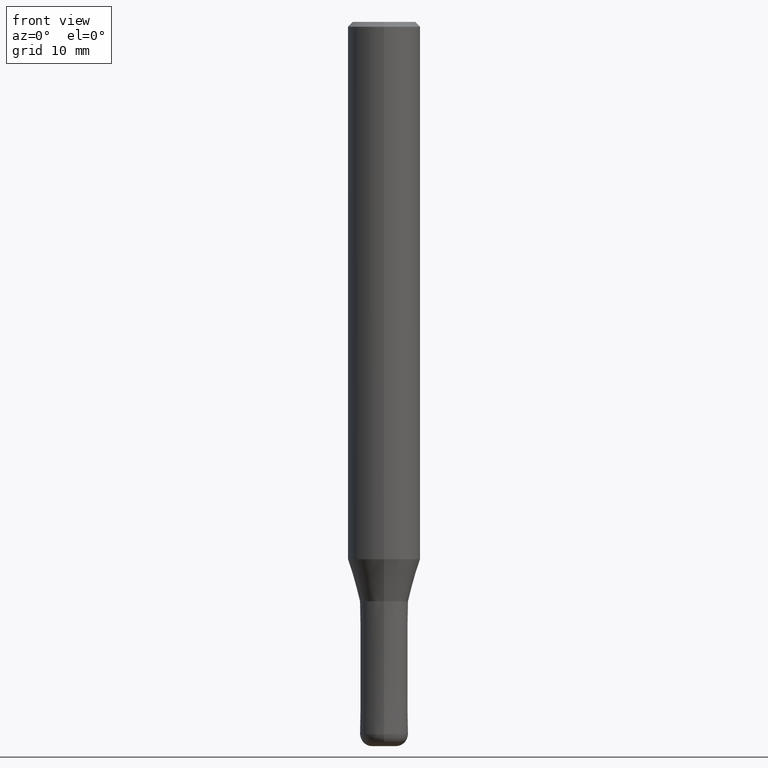
[diagram: clean part render]
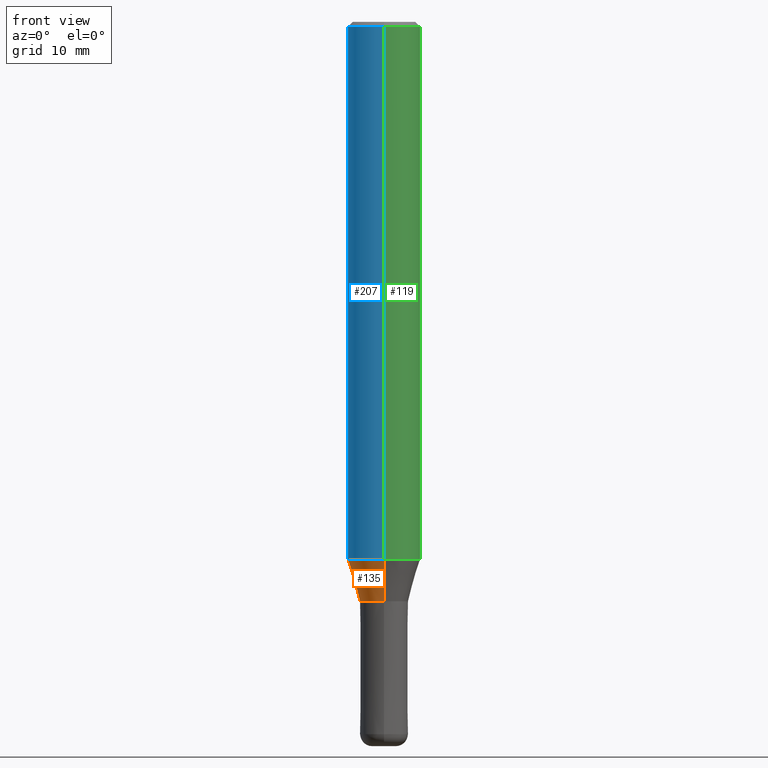
[diagram: same view with three faces highlighted in distinct colors, each labeled with its STEP entity id]
A machine part, front view with three faces highlighted in distinct colors.
Their STEP definitions:

[orange] entity #135 — the highlighted conical surface has half-angle 16.002 deg.
#129=VERTEX_POINT('',#317);
#131=VERTEX_POINT('',#319);
#135=ADVANCED_FACE('',(#323),#324,.T.);
#139=EDGE_CURVE('',#131,#129,#328,.T.);
#145=EDGE_CURVE('',#129,#199,#334,.T.);
#161=VERTEX_POINT('',#354);
#199=VERTEX_POINT('',#396);
#225=EDGE_CURVE('',#199,#161,#431,.T.);
#261=EDGE_CURVE('',#131,#161,#469,.T.);
#317=CARTESIAN_POINT('',(3.67375783114944E-016,-2.99995,-44.513));
#319=CARTESIAN_POINT('',(2.44915147732706E-016,-1.99995,-48.0));
#323=FACE_OUTER_BOUND('',#533,.T.);
#324=CONICAL_SURFACE('',#534,2.49995,0.279284171542493);
#328=LINE('',#541,#542);
#334=CIRCLE('',#550,2.99995);
#354=CARTESIAN_POINT('',(0.0,1.99995,-48.0));
#396=CARTESIAN_POINT('',(0.0,2.99995,-44.513));
#431=LINE('',#666,#667);
#469=CIRCLE('',#714,1.99995);
#533=EDGE_LOOP('',(#761,#762,#763,#764));
#534=AXIS2_PLACEMENT_3D('',#765,#766,#767);
#541=CARTESIAN_POINT('',(3.06145465423825E-016,-2.49995,-46.2565));
#542=VECTOR('',#769,1.0);
#550=AXIS2_PLACEMENT_3D('',#773,#774,#775);
#666=CARTESIAN_POINT('',(-3.06145465423825E-016,2.49995,-46.2565));
#667=VECTOR('',#925,1.0);
#714=AXIS2_PLACEMENT_3D('',#958,#959,#960);
#761=ORIENTED_EDGE('',*,*,#225,.T.);
#762=ORIENTED_EDGE('',*,*,#261,.F.);
#763=ORIENTED_EDGE('',*,*,#139,.T.);
#764=ORIENTED_EDGE('',*,*,#145,.T.);
#765=CARTESIAN_POINT('',(0.0,0.0,-46.2565));
#766=DIRECTION('',(-0.0,-0.0,1.0));
#767=DIRECTION('',(0.0,1.0,0.0));
#769=DIRECTION('',(3.37584327551579E-017,-0.275667626987132,0.961253015304131));
#773=CARTESIAN_POINT('',(0.0,0.0,-44.513));
#774=DIRECTION('',(0.0,0.0,-1.0));
#775=DIRECTION('',(0.0,1.0,0.0));
#925=DIRECTION('',(3.37584327551579E-017,-0.275667626987132,-0.961253015304131));
#958=CARTESIAN_POINT('',(0.0,0.0,-48.0));
#959=DIRECTION('',(0.0,0.0,-1.0));
#960=DIRECTION('',(0.0,1.0,0.0));

[blue] entity #207 — the highlighted cylindrical surface (edge-blend (fillet) strip) has radius 3 mm, axis along (-0, -0, 1).
#163=VERTEX_POINT('',#356);
#179=EDGE_CURVE('',#163,#253,#375,.T.);
#185=EDGE_CURVE('',#189,#253,#381,.T.);
#189=VERTEX_POINT('',#385);
#201=EDGE_CURVE('',#163,#243,#398,.T.);
#207=ADVANCED_FACE('',(#408),#409,.T.);
#243=VERTEX_POINT('',#449);
#253=VERTEX_POINT('',#461);
#283=EDGE_CURVE('',#243,#189,#494,.T.);
#356=CARTESIAN_POINT('',(3.67381906146713E-016,-3.0,-44.513));
#375=CIRCLE('',#600,3.0);
#381=LINE('',#608,#609);
#385=CARTESIAN_POINT('',(0.0,3.0,-0.399999999999999));
#398=LINE('',#629,#630);
#408=FACE_OUTER_BOUND('',#640,.T.);
#409=CYLINDRICAL_SURFACE('',#641,3.0);
#449=CARTESIAN_POINT('',(3.67381906146713E-016,-3.0,-0.399999999999999));
#461=CARTESIAN_POINT('',(0.0,3.0,-44.513));
#494=CIRCLE('',#745,3.0);
#600=AXIS2_PLACEMENT_3D('',#843,#844,#845);
#608=CARTESIAN_POINT('',(-3.67381906146713E-016,3.0,-22.4565));
#609=VECTOR('',#849,1.0);
#629=CARTESIAN_POINT('',(3.67381906146713E-016,-3.0,-22.4565));
#630=VECTOR('',#864,1.0);
#640=EDGE_LOOP('',(#882,#883,#884,#885));
#641=AXIS2_PLACEMENT_3D('',#886,#887,#888);
#745=AXIS2_PLACEMENT_3D('',#992,#993,#994);
#843=CARTESIAN_POINT('',(0.0,0.0,-44.513));
#844=DIRECTION('',(0.0,0.0,-1.0));
#845=DIRECTION('',(0.0,1.0,0.0));
#849=DIRECTION('',(0.0,0.0,-1.0));
#864=DIRECTION('',(-0.0,-0.0,1.0));
#882=ORIENTED_EDGE('',*,*,#185,.T.);
#883=ORIENTED_EDGE('',*,*,#179,.F.);
#884=ORIENTED_EDGE('',*,*,#201,.T.);
#885=ORIENTED_EDGE('',*,*,#283,.T.);
#886=CARTESIAN_POINT('',(0.0,0.0,-22.4565));
#887=DIRECTION('',(-0.0,-0.0,1.0));
#888=DIRECTION('',(0.0,1.0,0.0));
#992=CARTESIAN_POINT('',(0.0,0.0,-0.399999999999999));
#993=DIRECTION('',(0.0,0.0,-1.0));
#994=DIRECTION('',(0.0,1.0,0.0));

[green] entity #119 — the highlighted cylindrical surface (edge-blend (fillet) strip) has radius 3 mm, axis along (-0, -0, 1).
#119=ADVANCED_FACE('',(#306),#307,.T.);
#163=VERTEX_POINT('',#356);
#185=EDGE_CURVE('',#189,#253,#381,.T.);
#189=VERTEX_POINT('',#385);
#201=EDGE_CURVE('',#163,#243,#398,.T.);
#237=EDGE_CURVE('',#253,#163,#443,.T.);
#241=EDGE_CURVE('',#189,#243,#447,.T.);
#243=VERTEX_POINT('',#449);
#253=VERTEX_POINT('',#461);
#306=FACE_OUTER_BOUND('',#509,.T.);
#307=CYLINDRICAL_SURFACE('',#510,3.0);
#356=CARTESIAN_POINT('',(3.67381906146713E-016,-3.0,-44.513));
#381=LINE('',#608,#609);
#385=CARTESIAN_POINT('',(0.0,3.0,-0.399999999999999));
#398=LINE('',#629,#630);
#443=CIRCLE('',#681,3.0);
#447=CIRCLE('',#688,3.0);
#449=CARTESIAN_POINT('',(3.67381906146713E-016,-3.0,-0.399999999999999));
#461=CARTESIAN_POINT('',(0.0,3.0,-44.513));
#509=EDGE_LOOP('',(#748,#749,#750,#751));
#510=AXIS2_PLACEMENT_3D('',#752,#753,#754);
#608=CARTESIAN_POINT('',(-3.67381906146713E-016,3.0,-22.4565));
#609=VECTOR('',#849,1.0);
#629=CARTESIAN_POINT('',(3.67381906146713E-016,-3.0,-22.4565));
#630=VECTOR('',#864,1.0);
#681=AXIS2_PLACEMENT_3D('',#933,#934,#935);
#688=AXIS2_PLACEMENT_3D('',#937,#938,#939);
#748=ORIENTED_EDGE('',*,*,#185,.F.);
#749=ORIENTED_EDGE('',*,*,#241,.T.);
#750=ORIENTED_EDGE('',*,*,#201,.F.);
#751=ORIENTED_EDGE('',*,*,#237,.F.);
#752=CARTESIAN_POINT('',(0.0,0.0,-22.4565));
#753=DIRECTION('',(-0.0,-0.0,1.0));
#754=DIRECTION('',(0.0,1.0,0.0));
#849=DIRECTION('',(0.0,0.0,-1.0));
#864=DIRECTION('',(-0.0,-0.0,1.0));
#933=CARTESIAN_POINT('',(0.0,0.0,-44.513));
#934=DIRECTION('',(0.0,0.0,-1.0));
#935=DIRECTION('',(0.0,1.0,0.0));
#937=CARTESIAN_POINT('',(0.0,0.0,-0.399999999999999));
#938=DIRECTION('',(0.0,0.0,-1.0));
#939=DIRECTION('',(0.0,1.0,0.0));